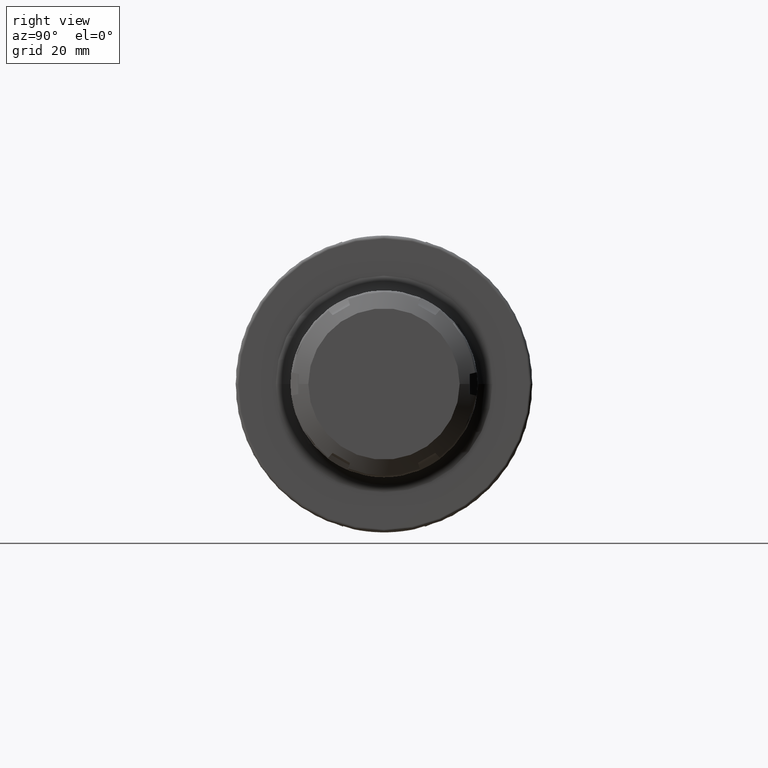
[diagram: clean part render]
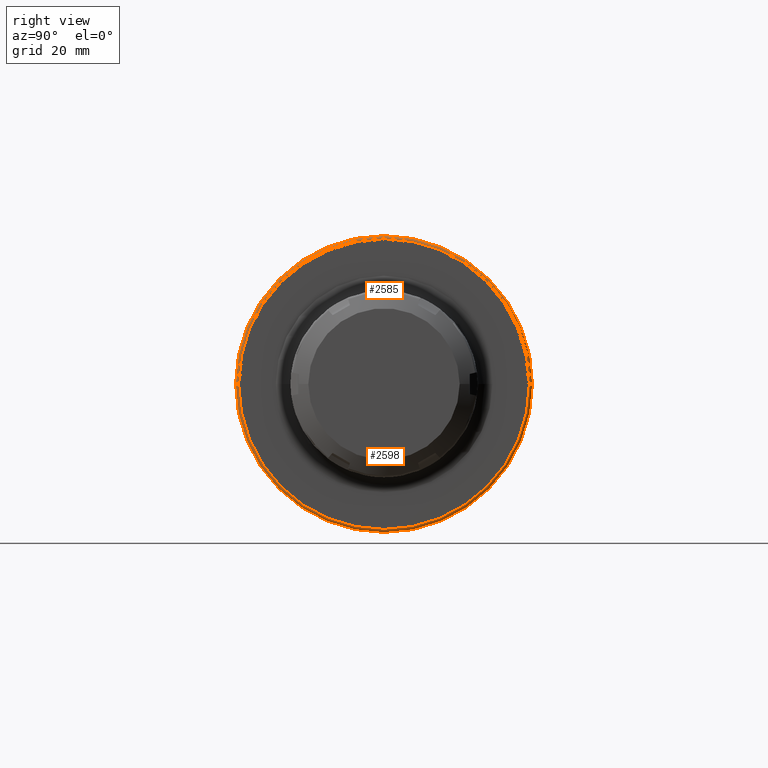
[diagram: same view with one multi-face feature highlighted, each face labeled with its STEP entity id]
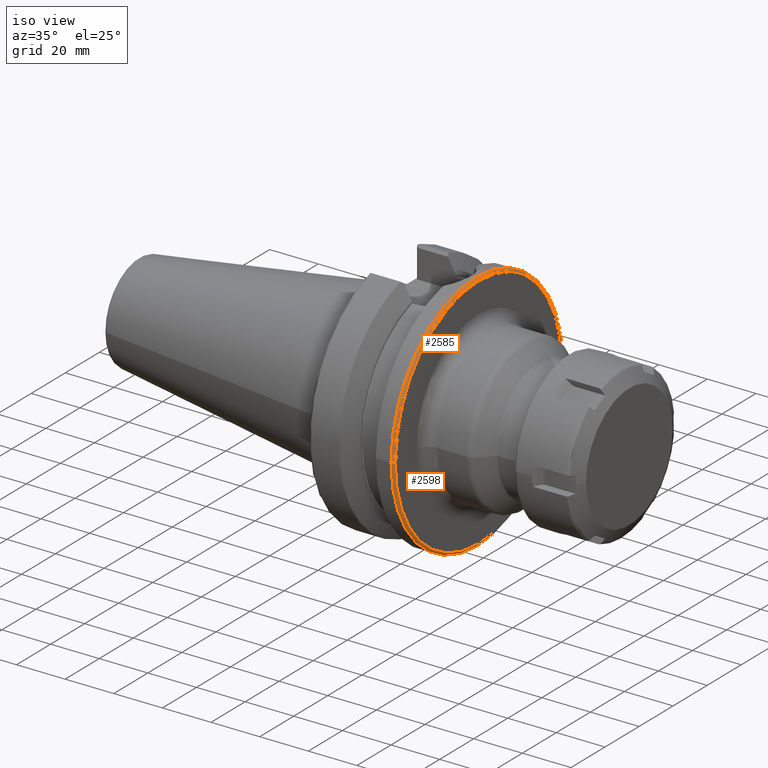
[diagram: same view with one multi-face feature highlighted, each face labeled with its STEP entity id]
A machine part, right view. The highlighted faces form ONE feature: a constant-radius fillet chain: 2 tangent blend faces with common blend radius 1 mm. The faces share edges in the B-rep.
A second angle (iso view) of the same feature is appended — it is thin or edge-on in the first view.
Their STEP definitions:
[1] entity #2598 (Torus):
#254=CARTESIAN_POINT('',(3.7E1,0.E0,0.E0));
#255=DIRECTION('',(-1.E0,0.E0,0.E0));
#256=DIRECTION('',(0.E0,1.E0,0.E0));
#257=AXIS2_PLACEMENT_3D('',#254,#255,#256);
#819=CARTESIAN_POINT('',(3.7E1,4.89875E1,0.E0));
#820=DIRECTION('',(0.E0,0.E0,1.E0));
#821=DIRECTION('',(1.E0,0.E0,0.E0));
#822=AXIS2_PLACEMENT_3D('',#819,#820,#821);
#824=CARTESIAN_POINT('',(3.7E1,-4.89875E1,-1.199847701465E-14));
#825=DIRECTION('',(0.E0,0.E0,-1.E0));
#826=DIRECTION('',(1.E0,0.E0,0.E0));
#827=AXIS2_PLACEMENT_3D('',#824,#825,#826);
#829=CARTESIAN_POINT('',(3.8E1,0.E0,0.E0));
#830=DIRECTION('',(-1.E0,0.E0,0.E0));
#831=DIRECTION('',(0.E0,1.E0,0.E0));
#832=AXIS2_PLACEMENT_3D('',#829,#830,#831);
#1288=CARTESIAN_POINT('',(3.7E1,4.99875E1,0.E0));
#1289=VERTEX_POINT('',#1288);
#1290=CARTESIAN_POINT('',(3.7E1,-4.99875E1,0.E0));
#1291=VERTEX_POINT('',#1290);
#1358=CARTESIAN_POINT('',(3.8E1,4.89875E1,0.E0));
#1359=VERTEX_POINT('',#1358);
#1360=CARTESIAN_POINT('',(3.8E1,-4.89875E1,-1.199847701465E-14));
#1361=VERTEX_POINT('',#1360);
#2586=CARTESIAN_POINT('',(3.7E1,0.E0,0.E0));
#2587=DIRECTION('',(1.E0,0.E0,0.E0));
#2588=DIRECTION('',(0.E0,-1.E0,0.E0));
#2589=AXIS2_PLACEMENT_3D('',#2586,#2587,#2588);
#2590=TOROIDAL_SURFACE('',#2589,4.89875E1,1.E0);
#2591=ORIENTED_EDGE('',*,*,#2576,.T.);
#2592=ORIENTED_EDGE('',*,*,#1825,.T.);
#2593=ORIENTED_EDGE('',*,*,#2580,.F.);
#2595=ORIENTED_EDGE('',*,*,#2594,.F.);
#2596=EDGE_LOOP('',(#2591,#2592,#2593,#2595));
#2597=FACE_OUTER_BOUND('',#2596,.F.);
#2598=ADVANCED_FACE('',(#2597),#2590,.T.);
#258=CIRCLE('',#257,4.99875E1);
#823=CIRCLE('',#822,1.E0);
#828=CIRCLE('',#827,1.E0);
#833=CIRCLE('',#832,4.89875E1);
#1825=EDGE_CURVE('',#1289,#1291,#258,.T.);
#2576=EDGE_CURVE('',#1359,#1289,#823,.T.);
#2580=EDGE_CURVE('',#1361,#1291,#828,.T.);
#2594=EDGE_CURVE('',#1359,#1361,#833,.T.);
[2] entity #2585 (Torus):
#787=CARTESIAN_POINT('',(3.7E1,0.E0,0.E0));
#788=DIRECTION('',(1.E0,0.E0,0.E0));
#789=DIRECTION('',(0.E0,1.E0,0.E0));
#790=AXIS2_PLACEMENT_3D('',#787,#788,#789);
#814=CARTESIAN_POINT('',(3.8E1,0.E0,0.E0));
#815=DIRECTION('',(1.E0,0.E0,0.E0));
#816=DIRECTION('',(0.E0,1.E0,0.E0));
#817=AXIS2_PLACEMENT_3D('',#814,#815,#816);
#819=CARTESIAN_POINT('',(3.7E1,4.89875E1,0.E0));
#820=DIRECTION('',(0.E0,0.E0,1.E0));
#821=DIRECTION('',(1.E0,0.E0,0.E0));
#822=AXIS2_PLACEMENT_3D('',#819,#820,#821);
#824=CARTESIAN_POINT('',(3.7E1,-4.89875E1,-1.199847701465E-14));
#825=DIRECTION('',(0.E0,0.E0,-1.E0));
#826=DIRECTION('',(1.E0,0.E0,0.E0));
#827=AXIS2_PLACEMENT_3D('',#824,#825,#826);
#1288=CARTESIAN_POINT('',(3.7E1,4.99875E1,0.E0));
#1289=VERTEX_POINT('',#1288);
#1290=CARTESIAN_POINT('',(3.7E1,-4.99875E1,0.E0));
#1291=VERTEX_POINT('',#1290);
#1358=CARTESIAN_POINT('',(3.8E1,4.89875E1,0.E0));
#1359=VERTEX_POINT('',#1358);
#1360=CARTESIAN_POINT('',(3.8E1,-4.89875E1,-1.199847701465E-14));
#1361=VERTEX_POINT('',#1360);
#2571=CARTESIAN_POINT('',(3.7E1,0.E0,0.E0));
#2572=DIRECTION('',(1.E0,0.E0,0.E0));
#2573=DIRECTION('',(0.E0,-1.E0,0.E0));
#2574=AXIS2_PLACEMENT_3D('',#2571,#2572,#2573);
#2575=TOROIDAL_SURFACE('',#2574,4.89875E1,1.E0);
#2577=ORIENTED_EDGE('',*,*,#2576,.F.);
#2579=ORIENTED_EDGE('',*,*,#2578,.T.);
#2581=ORIENTED_EDGE('',*,*,#2580,.T.);
#2582=ORIENTED_EDGE('',*,*,#2562,.F.);
#2583=EDGE_LOOP('',(#2577,#2579,#2581,#2582));
#2584=FACE_OUTER_BOUND('',#2583,.F.);
#2585=ADVANCED_FACE('',(#2584),#2575,.T.);
#791=CIRCLE('',#790,4.99875E1);
#818=CIRCLE('',#817,4.89875E1);
#823=CIRCLE('',#822,1.E0);
#828=CIRCLE('',#827,1.E0);
#2562=EDGE_CURVE('',#1289,#1291,#791,.T.);
#2576=EDGE_CURVE('',#1359,#1289,#823,.T.);
#2578=EDGE_CURVE('',#1359,#1361,#818,.T.);
#2580=EDGE_CURVE('',#1361,#1291,#828,.T.);